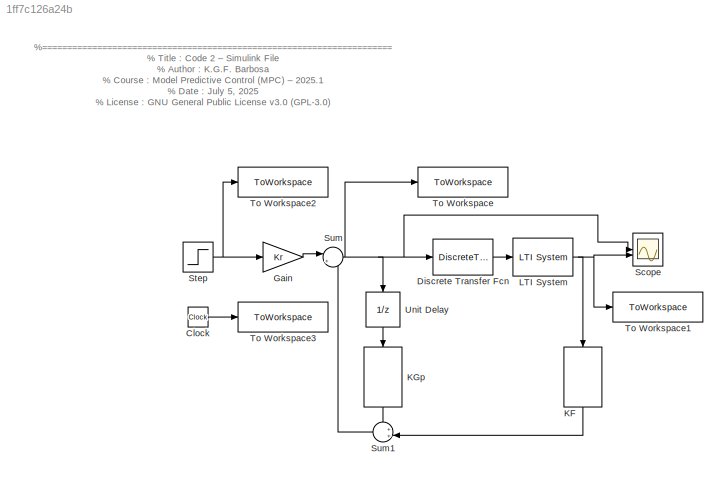
MODEL slx_1ff7c126a24b
KIND model
CONFIG AbsTol = auto
CONFIG EnableMultiTasking = off
CONFIG FixedStep = auto
CONFIG MaxStep = auto
CONFIG MinStep = auto
CONFIG RelTol = 1e-3
CONFIG SampleTimeConstraint = Unconstrained
CONFIG SolverName = VariableStepAuto
CONFIG StartTime = 0.0
CONFIG StopTime = Tsim
BLOCK [Clock] Clock
BLOCK [DiscreteTransferFcn] Discrete Transfer Fcn
  Denominator = denDelta
  InputPortMap = u0
  Numerator = numDelta
BLOCK [Gain] Gain
  Gain = Kr
BLOCK [DiscreteFir] KF
  Coefficients = KF
  InputPortMap = u0
  NameLocation = left
  OutputPortMap = o0
BLOCK [DiscreteFir] KGp
  Coefficients = KGp
  InputPortMap = u0
  NameLocation = left
  OutputPortMap = o0
BLOCK [Reference] LTI System  REF=cstblocks/LTI System
  SourceBlock = cstblocks/LTI System
  SourceType = LTI Block
BLOCK [Scope] Scope
  Floating = off
  NumInputPorts = 2
  ScopeSpecificationString = Simulink.scopes.TimeScopeBlockCfg('CurrentConfiguration', extmgr.ConfigurationSet(extmgr.Configuration('Core','General UI',true),extmgr.Configuration('Core','Source UI',true),extmgr.Configuration('Sources','WiredSimulink',true,'SampleTime','1'),extmgr.Configuration('Visuals','Time Domain',true,'SerializedDisplays',{struct('MinYLimReal','-0.33006','MaxYLimReal','1.20102','YLabelReal','','MinYLimMag...<+1411ch>
BLOCK [Step] Step
  After = refFinalValue
  Before = refInitialValue
  SampleTime = Ts
  Time = Tref
BLOCK [Sum] Sum
  Inputs = |+-
BLOCK [Sum] Sum1
  Inputs = ++|
BLOCK [ToWorkspace] To Workspace
  FixptAsFi = on
  MaxDataPoints = inf
  SampleTime = Ts
  Save2DSignal = 2-D array (concatenate along first dimension)
  VariableName = du
BLOCK [ToWorkspace] To Workspace1
  FixptAsFi = on
  MaxDataPoints = inf
  SampleTime = Ts
  Save2DSignal = 2-D array (concatenate along first dimension)
  VariableName = y
BLOCK [ToWorkspace] To Workspace2
  FixptAsFi = on
  MaxDataPoints = inf
  SampleTime = Ts
  Save2DSignal = 2-D array (concatenate along first dimension)
  VariableName = ref
BLOCK [ToWorkspace] To Workspace3
  FixptAsFi = on
  MaxDataPoints = inf
  SampleTime = Ts
  Save2DSignal = 2-D array (concatenate along first dimension)
  VariableName = time
BLOCK [UnitDelay] Unit Delay
  HasFrameUpgradeWarning = on
  NameLocation = left
  SampleTime = Ts
ANNOTATION (root): %====================================================================== % Title : Code 2 – Simulink File % Author : K.G.F. Barbosa % Course : Model Predictive Control (MPC) – 2025.1 % Date : July 5, 2025 % License : GNU General Public License v3.0 (GPL-3.0) % Repository : https://github.com/kgfbarbosa/CTRL-ModelPredictiveControl % ===================================================================...<+4ch>
LINE Clock:1 -> To Workspace3:1
LINE Discrete Transfer Fcn:1 -> LTI System:1
LINE Gain:1 -> Sum:1
LINE KF:1 -> Sum1:2
LINE KGp:1 -> Sum1:1
NET LTI System:1 -> KF:1, Scope:2, To Workspace1:1
NET Step:1 -> Gain:1, To Workspace2:1
LINE Sum1:1 -> Sum:2
NET Sum:1 -> Discrete Transfer Fcn:1, Scope:1, To Workspace:1, Unit Delay:1
LINE Unit Delay:1 -> KGp:1
note: NET lines group one-source signal fan-out (src -> all destinations, sorted); 1:1 wires keep LINE
